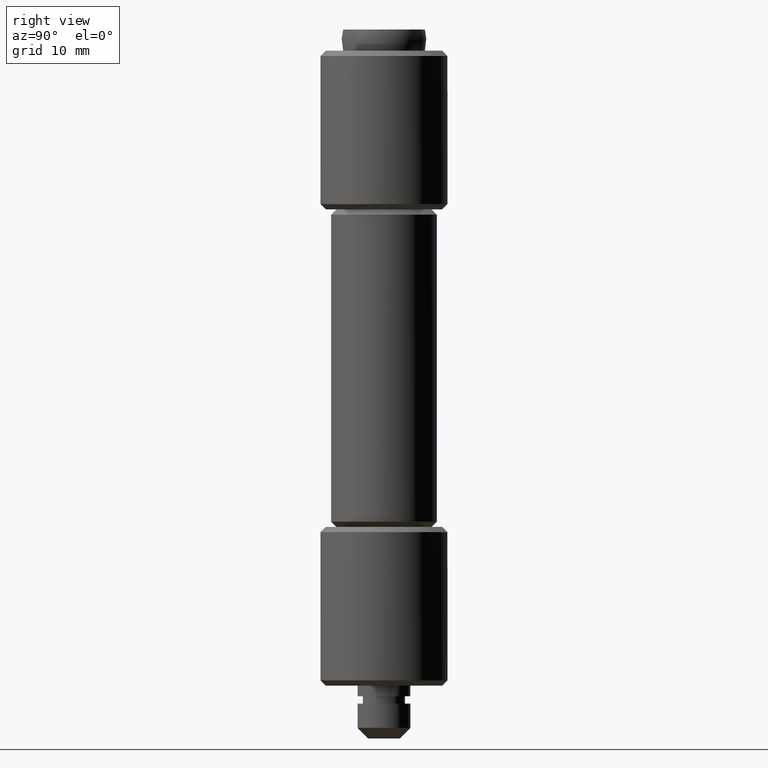
[diagram: clean part render]
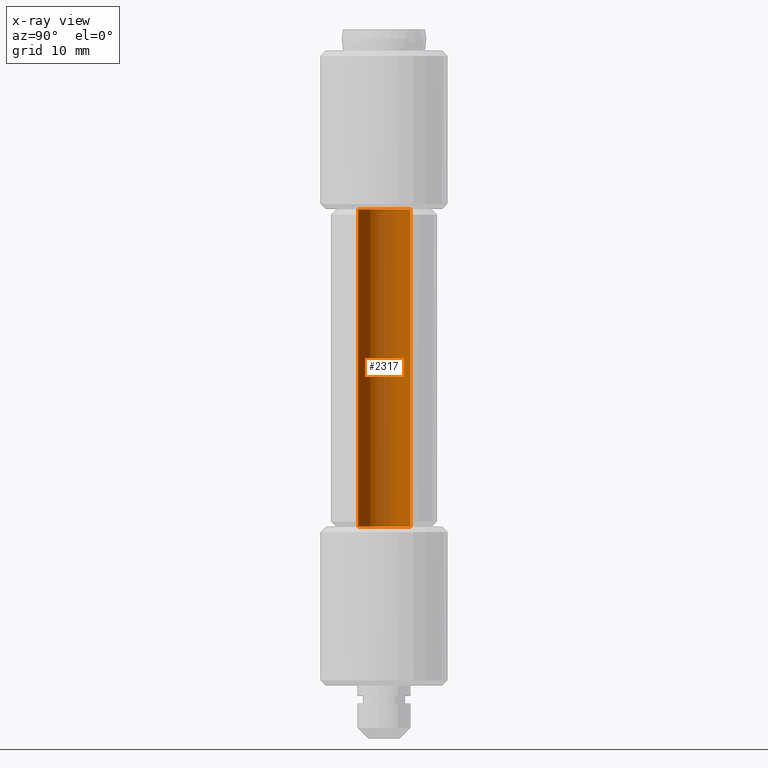
[diagram: x-ray — body ghosted, one internal face saturated and labeled with its STEP entity id]
A machine part, right view, then the same camera in x-ray: the body is ghosted and one INTERNAL B-rep face — a face not visible from any outside direction — is saturated and labeled: STEP entity #2317.
In plain terms, the highlighted face is a freeform B-spline surface patch.
Its self-contained STEP definition (entity closure, byte-faithful):
#2215=CARTESIAN_POINT('',(0.295085586641896,-2.482523815909166,50.750000000000007));
#2216=CARTESIAN_POINT('',(0.224036821594944,-2.490969038621514,50.750000000000007));
#2217=CARTESIAN_POINT('',(0.152621348837143,-2.495336996054667,50.750000000000007));
#2218=CARTESIAN_POINT('',(-2.342715647217524,-2.647958344891809,50.750000000000007));
#2219=CARTESIAN_POINT('',(-2.495336996054667,-0.152621348837143,50.750000000000007));
#2220=CARTESIAN_POINT('',(-2.647958344891809,2.342715647217524,50.750000000000007));
#2221=CARTESIAN_POINT('',(-0.152621348837143,2.495336996054667,50.750000000000007));
#2222=CARTESIAN_POINT('',(0.295085586641896,-2.482523815909166,19.231249999999999));
#2223=CARTESIAN_POINT('',(0.224036821594944,-2.490969038621514,19.231249999999999));
#2224=CARTESIAN_POINT('',(0.152621348837143,-2.495336996054667,19.231249999999999));
#2225=CARTESIAN_POINT('',(-2.342715647217524,-2.647958344891809,19.231249999999996));
#2226=CARTESIAN_POINT('',(-2.495336996054667,-0.152621348837143,19.231249999999999));
#2227=CARTESIAN_POINT('',(-2.647958344891809,2.342715647217524,19.231249999999996));
#2228=CARTESIAN_POINT('',(-0.152621348837143,2.495336996054667,19.231249999999999));
#2236=(BOUNDED_SURFACE()B_SPLINE_SURFACE(2,1,((#2215,#2222),(#2216,#2223),(#2217,#2224),(#2218,#2225),(#2219,#2226),(#2220,#2227),(#2221,#2228)),.UNSPECIFIED.,.F.,.F.,.U.)B_SPLINE_SURFACE_WITH_KNOTS((3,2,2,3),(2,2),(0.0,0.165685424949238,4.307821048680188,8.449956672411137),(0.0,31.518750000000011),.UNSPECIFIED.)GEOMETRIC_REPRESENTATION_ITEM()RATIONAL_B_SPLINE_SURFACE(((0.977505800795127,0.977505800795127),(0.988284271247462,0.988284271247462),(1.0,1.0),(0.707106781186548,0.707106781186548),(1.0,1.0),(0.707106781186548,0.707106781186548),(1.0,1.0)))REPRESENTATION_ITEM('')SURFACE());
#2237=CARTESIAN_POINT('',(0.295085586764168,-2.482523815894632,20.0));
#2238=VERTEX_POINT('',#2237);
#2239=CARTESIAN_POINT('',(-2.500000000000000,0.0,20.0));
#2240=VERTEX_POINT('',#2239);
#2241=CARTESIAN_POINT('',(0.295085586764167,-2.482523815894632,20.000000000000004));
#2242=CARTESIAN_POINT('',(0.148060299253339,-2.500000000000000,20.000000000000004));
#2243=CARTESIAN_POINT('',(0.0,-2.500000000000000,20.0));
#2244=CARTESIAN_POINT('',(-2.500000000000000,-2.500000000000000,19.999999999999996));
#2245=CARTESIAN_POINT('',(-2.500000000000000,0.0,20.0));
#2253=(BOUNDED_CURVE()B_SPLINE_CURVE(2,(#2241,#2242,#2243,#2244,#2245),.UNSPECIFIED.,.F.,.U.)B_SPLINE_CURVE_WITH_KNOTS((3,2,3),(0.229562473498996,0.250000000000000,0.500000000000000),.UNSPECIFIED.)CURVE()GEOMETRIC_REPRESENTATION_ITEM()RATIONAL_B_SPLINE_CURVE((0.956026754155255,0.976055948314143,1.0,0.707106781186548,1.0))REPRESENTATION_ITEM(''));
#2254=EDGE_CURVE('',#2238,#2240,#2253,.T.);
#2255=ORIENTED_EDGE('',*,*,#2254,.T.);
#2256=CARTESIAN_POINT('',(-0.152621348974490,2.495336996046267,20.0));
#2257=VERTEX_POINT('',#2256);
#2258=CARTESIAN_POINT('',(-2.500000000000000,0.0,20.0));
#2259=CARTESIAN_POINT('',(-2.500000000000000,2.351765167004858,19.999999999999993));
#2260=CARTESIAN_POINT('',(-0.152621348974490,2.495336996046266,20.0));
#2268=(BOUNDED_CURVE()B_SPLINE_CURVE(2,(#2258,#2259,#2260),.UNSPECIFIED.,.F.,.U.)B_SPLINE_CURVE_WITH_KNOTS((3,3),(0.500000000000000,0.739332962222973),.UNSPECIFIED.)CURVE()GEOMETRIC_REPRESENTATION_ITEM()RATIONAL_B_SPLINE_CURVE((1.0,0.719603993305420,0.976072041632492))REPRESENTATION_ITEM(''));
#2269=EDGE_CURVE('',#2240,#2257,#2268,.T.);
#2270=ORIENTED_EDGE('',*,*,#2269,.T.);
#2271=CARTESIAN_POINT('',(-0.152621348974491,2.495336996046266,50.0));
#2272=VERTEX_POINT('',#2271);
#2273=CARTESIAN_POINT('',(-0.152621348974491,2.495336996046266,50.0));
#2274=CARTESIAN_POINT('',(-0.152621348974490,2.495336996046267,20.0));
#2275=QUASI_UNIFORM_CURVE('',1,(#2273,#2274),.UNSPECIFIED.,.F.,.U.);
#2276=EDGE_CURVE('',#2272,#2257,#2275,.T.);
#2277=ORIENTED_EDGE('',*,*,#2276,.F.);
#2278=CARTESIAN_POINT('',(-2.500000000000000,0.0,50.0));
#2279=VERTEX_POINT('',#2278);
#2280=CARTESIAN_POINT('',(-2.500000000000000,0.0,50.0));
#2281=CARTESIAN_POINT('',(-2.500000000000000,2.351765167004858,49.999999999999993));
#2282=CARTESIAN_POINT('',(-0.152621348974491,2.495336996046266,49.999999999999993));
#2290=(BOUNDED_CURVE()B_SPLINE_CURVE(2,(#2280,#2281,#2282),.UNSPECIFIED.,.F.,.U.)B_SPLINE_CURVE_WITH_KNOTS((3,3),(0.500000000000000,0.739332962222973),.UNSPECIFIED.)CURVE()GEOMETRIC_REPRESENTATION_ITEM()RATIONAL_B_SPLINE_CURVE((1.0,0.719603993305420,0.976072041632492))REPRESENTATION_ITEM(''));
#2291=EDGE_CURVE('',#2279,#2272,#2290,.T.);
#2292=ORIENTED_EDGE('',*,*,#2291,.F.);
#2293=CARTESIAN_POINT('',(0.295085586764168,-2.482523815894632,50.0));
#2294=VERTEX_POINT('',#2293);
#2295=CARTESIAN_POINT('',(0.295085586764168,-2.482523815894632,50.0));
#2296=CARTESIAN_POINT('',(0.148060299253339,-2.500000000000000,49.999999999999993));
#2297=CARTESIAN_POINT('',(0.0,-2.500000000000000,50.0));
#2298=CARTESIAN_POINT('',(-2.500000000000000,-2.500000000000000,50.0));
#2299=CARTESIAN_POINT('',(-2.500000000000000,0.0,50.0));
#2307=(BOUNDED_CURVE()B_SPLINE_CURVE(2,(#2295,#2296,#2297,#2298,#2299),.UNSPECIFIED.,.F.,.U.)B_SPLINE_CURVE_WITH_KNOTS((3,2,3),(0.229562473498996,0.250000000000000,0.500000000000000),.UNSPECIFIED.)CURVE()GEOMETRIC_REPRESENTATION_ITEM()RATIONAL_B_SPLINE_CURVE((0.956026754155255,0.976055948314143,1.0,0.707106781186548,1.0))REPRESENTATION_ITEM(''));
#2308=EDGE_CURVE('',#2294,#2279,#2307,.T.);
#2309=ORIENTED_EDGE('',*,*,#2308,.F.);
#2310=CARTESIAN_POINT('',(0.295085586764168,-2.482523815894632,50.0));
#2311=CARTESIAN_POINT('',(0.295085586764168,-2.482523815894632,20.0));
#2312=QUASI_UNIFORM_CURVE('',1,(#2310,#2311),.UNSPECIFIED.,.F.,.U.);
#2313=EDGE_CURVE('',#2294,#2238,#2312,.T.);
#2314=ORIENTED_EDGE('',*,*,#2313,.T.);
#2315=EDGE_LOOP('',(#2255,#2270,#2277,#2292,#2309,#2314));
#2316=FACE_OUTER_BOUND('',#2315,.T.);
#2317=ADVANCED_FACE('',(#2316),#2236,.F.);